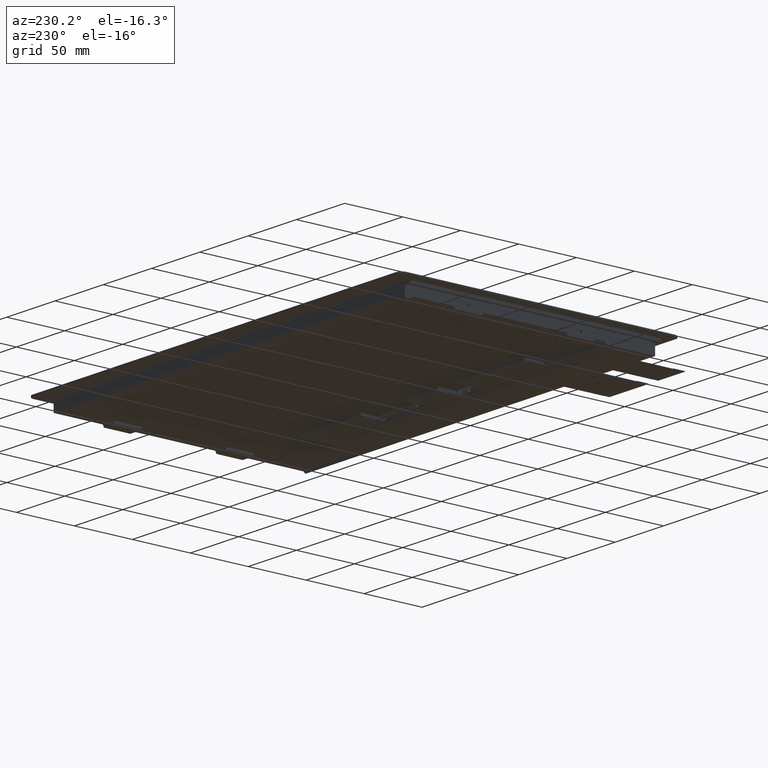
[diagram: clean part render]
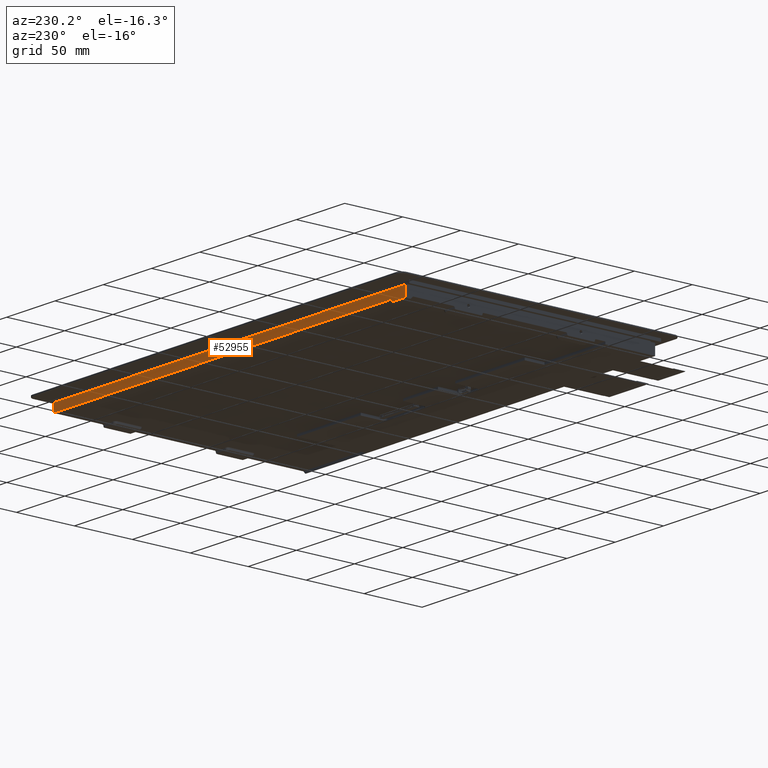
[diagram: same view with one face highlighted and labeled with its STEP entity id]
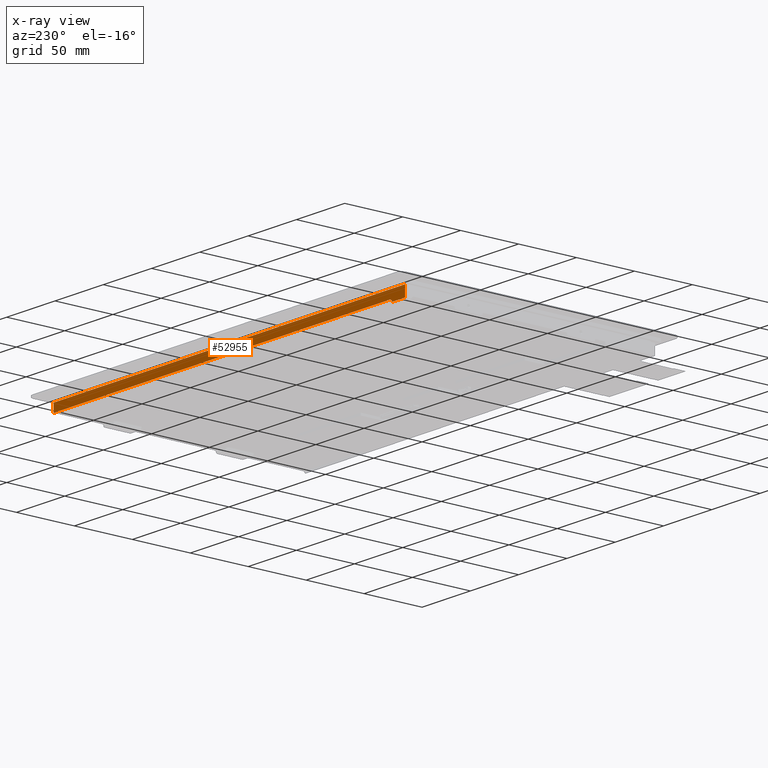
[diagram: x-ray of the same camera — body ghosted, the highlighted face saturated]
A machine part, auxiliary view. The second image highlights one B-rep face of the part: STEP entity #52955.
The next image is the same camera in x-ray: the body ghosted, the highlighted face saturated — about 0% of this face is hidden behind the body in this view.
In plain terms, the highlighted planar face has unit normal (0, 1, 0).
Its self-contained STEP definition (entity closure, byte-faithful):
#1240=FACE_OUTER_BOUND('',#3963,.T.);
#3963=EDGE_LOOP('',(#37677,#37678,#37679,#37680,#37681,#37682));
#8654=LINE('',#76019,#15753);
#8655=LINE('',#76021,#15754);
#8656=LINE('',#76023,#15755);
#8657=LINE('',#76025,#15756);
#8658=LINE('',#76027,#15757);
#8659=LINE('',#76028,#15758);
#15753=VECTOR('',#61447,10.);
#15754=VECTOR('',#61448,10.);
#15755=VECTOR('',#61449,10.);
#15756=VECTOR('',#61450,10.);
#15757=VECTOR('',#61451,10.);
#15758=VECTOR('',#61452,10.);
#22292=VERTEX_POINT('',#76017);
#22293=VERTEX_POINT('',#76018);
#22294=VERTEX_POINT('',#76020);
#22295=VERTEX_POINT('',#76022);
#22296=VERTEX_POINT('',#76024);
#22297=VERTEX_POINT('',#76026);
#28075=EDGE_CURVE('',#22292,#22293,#8654,.T.);
#28076=EDGE_CURVE('',#22294,#22292,#8655,.T.);
#28077=EDGE_CURVE('',#22295,#22294,#8656,.T.);
#28078=EDGE_CURVE('',#22295,#22296,#8657,.T.);
#28079=EDGE_CURVE('',#22296,#22297,#8658,.T.);
#28080=EDGE_CURVE('',#22297,#22293,#8659,.T.);
#37677=ORIENTED_EDGE('',*,*,#28075,.F.);
#37678=ORIENTED_EDGE('',*,*,#28076,.F.);
#37679=ORIENTED_EDGE('',*,*,#28077,.F.);
#37680=ORIENTED_EDGE('',*,*,#28078,.T.);
#37681=ORIENTED_EDGE('',*,*,#28079,.T.);
#37682=ORIENTED_EDGE('',*,*,#28080,.T.);
#50626=PLANE('',#55704);
#52955=ADVANCED_FACE('',(#1240),#50626,.T.);
#55704=AXIS2_PLACEMENT_3D('',#76016,#61445,#61446);
#61445=DIRECTION('center_axis',(0.,1.,0.));
#61446=DIRECTION('ref_axis',(1.,0.,0.));
#61447=DIRECTION('',(0.707106781186546,0.,0.707106781186549));
#61448=DIRECTION('',(1.,0.,0.));
#61449=DIRECTION('',(0.,0.,-1.));
#61450=DIRECTION('',(1.,0.,0.));
#61451=DIRECTION('',(0.,0.,-1.));
#61452=DIRECTION('',(-1.,0.,0.));
#76016=CARTESIAN_POINT('Origin',(-181.9,107.95,-4.72));
#76017=CARTESIAN_POINT('',(-168.9,107.95,-13.79));
#76018=CARTESIAN_POINT('',(-166.9,107.95,-11.79));
#76019=CARTESIAN_POINT('',(-169.3825,107.95,-14.2725));
#76020=CARTESIAN_POINT('',(-181.9,107.95,-13.79));
#76021=CARTESIAN_POINT('',(-181.9,107.95,-13.79));
#76022=CARTESIAN_POINT('',(-181.9,107.95,-4.72));
#76023=CARTESIAN_POINT('',(-181.9,107.95,-4.72));
#76024=CARTESIAN_POINT('',(181.9,107.95,-4.72));
#76025=CARTESIAN_POINT('',(-181.9,107.95,-4.72));
#76026=CARTESIAN_POINT('',(181.9,107.95,-11.79));
#76027=CARTESIAN_POINT('',(181.9,107.95,-4.72));
#76028=CARTESIAN_POINT('',(-109.95,107.95,-11.79));